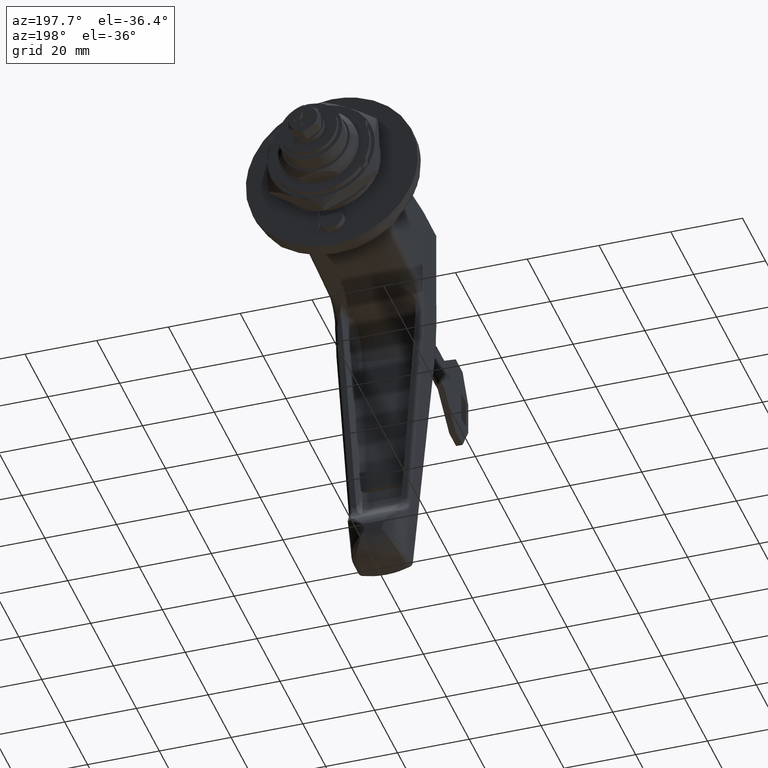
[diagram: clean part render]
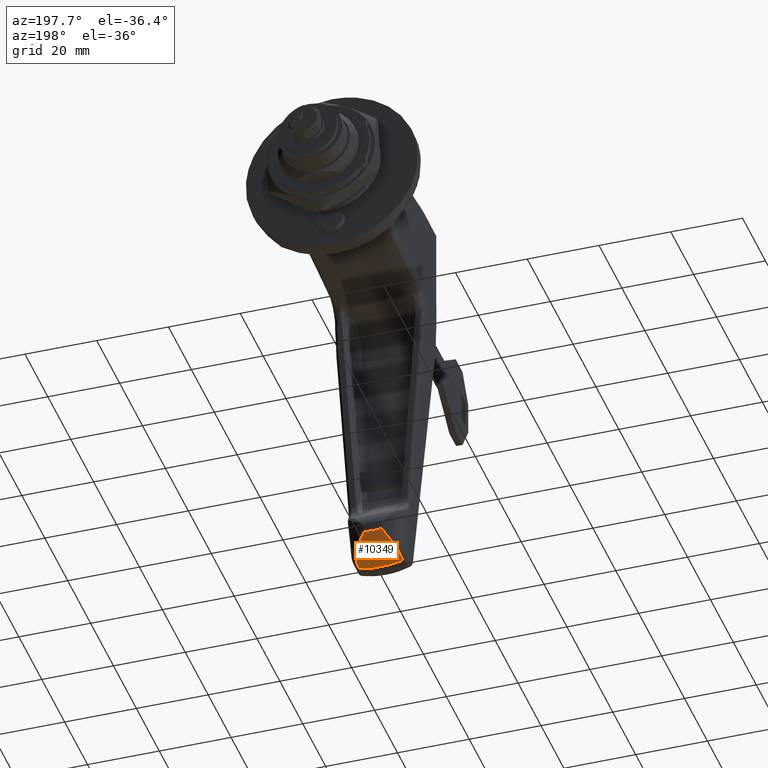
[diagram: same view with one face highlighted and labeled with its STEP entity id]
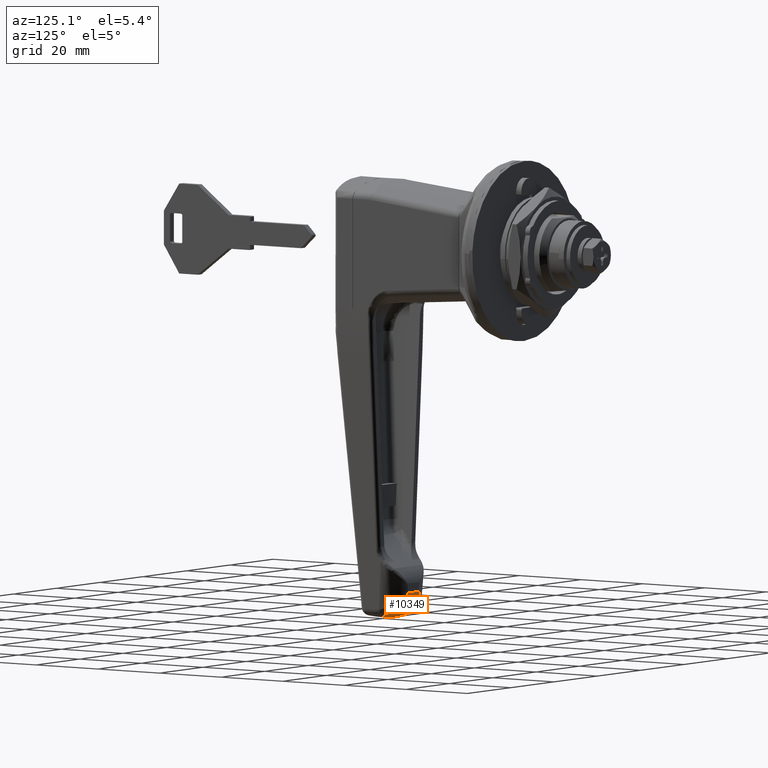
[diagram: same view with one face highlighted and labeled with its STEP entity id]
A machine part, auxiliary view. The second image highlights one B-rep face of the part: STEP entity #10349.
A second angle (auxiliary view) of the same face is appended — the face is thin or edge-on in the first view.
In plain terms, the highlighted face is a freeform B-spline surface patch.
Its self-contained STEP definition (entity closure, byte-faithful):
#9191=CARTESIAN_POINT('',(-36.0,2.402235869534550,-92.838981552407105));
#9192=VERTEX_POINT('',#9191);
#9238=CARTESIAN_POINT('',(-41.400232703835499,6.082757744321650,-99.057672582753710));
#9239=VERTEX_POINT('',#9238);
#9240=CARTESIAN_POINT('',(-41.400232703835499,6.082757744321709,-99.057672582753710));
#9241=CARTESIAN_POINT('',(-41.001840446385330,6.082573216091054,-98.961253228659558));
#9242=CARTESIAN_POINT('',(-40.617054938597967,6.049263009135467,-98.838786568899479));
#9243=CARTESIAN_POINT('',(-40.059392444842352,5.957444188707603,-98.615767583854478));
#9244=CARTESIAN_POINT('',(-39.876780081808967,5.919790798959626,-98.534837470377184));
#9245=CARTESIAN_POINT('',(-39.607853744631697,5.853199830263695,-98.403178076149075));
#9246=CARTESIAN_POINT('',(-39.519276802824670,5.829363818523548,-98.357682117735607));
#9247=CARTESIAN_POINT('',(-39.345417459927290,5.778895320147322,-98.264113561820210));
#9248=CARTESIAN_POINT('',(-39.259950918993113,5.752218095699744,-98.215951903188000));
#9249=CARTESIAN_POINT('',(-38.839761310217860,5.611988682436330,-97.968300547272463));
#9250=CARTESIAN_POINT('',(-38.526295991744348,5.478090089160500,-97.748434729688768));
#9251=CARTESIAN_POINT('',(-38.161899066209912,5.287426651894446,-97.445557542164181));
#9252=CARTESIAN_POINT('',(-38.090455661273623,5.248137371068532,-97.383601763831209));
#9253=CARTESIAN_POINT('',(-37.951479681393302,5.167966047925252,-97.257895239827704));
#9254=CARTESIAN_POINT('',(-37.883793150913512,5.127005302332803,-97.194019126516707));
#9255=CARTESIAN_POINT('',(-37.686000749001693,5.001663015703382,-96.999336321175846));
#9256=CARTESIAN_POINT('',(-37.561151916846207,4.914827321224314,-96.865480301726393));
#9257=CARTESIAN_POINT('',(-37.325015949554462,4.735322153027169,-96.589579937346244));
#9258=CARTESIAN_POINT('',(-37.213729991165998,4.642651046732799,-96.447535611106957));
#9259=CARTESIAN_POINT('',(-37.004571338573882,4.452015437035342,-96.155039759021363));
#9260=CARTESIAN_POINT('',(-36.906451262402172,4.353723145456030,-96.004081376382686));
#9261=CARTESIAN_POINT('',(-36.636164424107463,4.055962242403544,-95.544877679505547));
#9262=CARTESIAN_POINT('',(-36.486542995110320,3.852627458051540,-95.228786092734296));
#9263=CARTESIAN_POINT('',(-36.305558688344242,3.543188197683534,-94.738958939097387));
#9264=CARTESIAN_POINT('',(-36.252513483854983,3.439291074661246,-94.573057649113366));
#9265=CARTESIAN_POINT('',(-36.183927682555939,3.282594350837310,-94.320068087075569));
#9266=CARTESIAN_POINT('',(-36.162877145727187,3.230159698575435,-94.234949402743212));
#9267=CARTESIAN_POINT('',(-36.124585704280122,3.125340382624812,-94.063766381045227));
#9268=CARTESIAN_POINT('',(-36.107364674282231,3.073023751425033,-93.977814342735044));
#9269=CARTESIAN_POINT('',(-36.061428790832373,2.916415376763655,-93.718846528630280));
#9270=CARTESIAN_POINT('',(-36.038430692405143,2.812465393257704,-93.544720562859979));
#9271=CARTESIAN_POINT('',(-36.015374274745511,2.657464627974994,-93.281165405076536));
#9272=CARTESIAN_POINT('',(-36.009609204498837,2.606022241971149,-93.193038736471735));
#9273=CARTESIAN_POINT('',(-36.003842865608910,2.529253193174585,-93.060472190415638));
#9274=CARTESIAN_POINT('',(-36.002400873091347,2.503725544659359,-93.016214133574451));
#9275=CARTESIAN_POINT('',(-36.000959443300069,2.465548137048313,-92.949751837785541));
#9276=CARTESIAN_POINT('',(-36.000599180481501,2.452840741064967,-92.927584163512265));
#9277=CARTESIAN_POINT('',(-36.000119174764698,2.427464250269204,-92.883222979429519));
#9278=CARTESIAN_POINT('',(-36.0,2.414757078327302,-92.860952027531340));
#9279=CARTESIAN_POINT('',(-36.0,2.402235869534550,-92.838981552407105));
#9280=B_SPLINE_CURVE_WITH_KNOTS('',3,(#9240,#9241,#9242,#9243,#9244,#9245,#9246,#9247,#9248,#9249,#9250,#9251,#9252,#9253,#9254,#9255,#9256,#9257,#9258,#9259,#9260,#9261,#9262,#9263,#9264,#9265,#9266,#9267,#9268,#9269,#9270,#9271,#9272,#9273,#9274,#9275,#9276,#9277,#9278,#9279),.UNSPECIFIED.,.F.,.U.,(4,2,2,2,2,2,2,2,2,2,2,2,2,2,2,2,2,2,2,4),(0.0,0.125000000000009,0.187500000000015,0.218750000000016,0.250000000000017,0.375000000000016,0.406250000000015,0.437500000000014,0.500000000000013,0.562500000000011,0.625000000000009,0.750000000000007,0.812500000000004,0.843750000000004,0.875000000000005,0.937500000000006,0.968750000000007,0.984375000000005,0.992187500000003,1.0),.UNSPECIFIED.);
#9281=EDGE_CURVE('',#9239,#9192,#9280,.T.);
#9347=CARTESIAN_POINT('',(-43.0,6.083051041974920,-99.248638931303503));
#9348=VERTEX_POINT('',#9347);
#9373=CARTESIAN_POINT('',(-43.0,6.083051041974920,-99.248638931303503));
#9374=CARTESIAN_POINT('',(-42.729572790534093,6.083051041974919,-99.248638931303489));
#9375=CARTESIAN_POINT('',(-42.192561230690167,6.083016543304255,-99.216446504622894));
#9376=CARTESIAN_POINT('',(-41.663066520331007,6.082879484285739,-99.121283926465068));
#9377=CARTESIAN_POINT('',(-41.400232703835499,6.082757744321650,-99.057672582753710));
#9378=B_SPLINE_CURVE_WITH_KNOTS('',3,(#9373,#9374,#9375,#9376,#9377),.UNSPECIFIED.,.F.,.U.,(4,1,4),(0.0,0.500000000000000,1.0),.UNSPECIFIED.);
#9379=EDGE_CURVE('',#9348,#9239,#9378,.T.);
#9876=CARTESIAN_POINT('',(-43.0,-6.083051041974960,-99.248638931303503));
#9877=VERTEX_POINT('',#9876);
#9955=CARTESIAN_POINT('',(-41.400232703835449,-6.082757744321630,-99.057672582753710));
#9956=VERTEX_POINT('',#9955);
#9981=CARTESIAN_POINT('',(-41.400232703835449,-6.082757744321690,-99.057672582753710));
#9982=CARTESIAN_POINT('',(-41.663066520330979,-6.082879484285779,-99.121283926465054));
#9983=CARTESIAN_POINT('',(-42.192561292402992,-6.083016664601392,-99.216445987454449));
#9984=CARTESIAN_POINT('',(-42.729572790534107,-6.083051041974960,-99.248638931303546));
#9985=CARTESIAN_POINT('',(-43.0,-6.083051041974960,-99.248638931303503));
#9986=B_SPLINE_CURVE_WITH_KNOTS('',3,(#9981,#9982,#9983,#9984,#9985),.UNSPECIFIED.,.F.,.U.,(4,1,4),(0.0,0.500000000000000,1.0),.UNSPECIFIED.);
#9987=EDGE_CURVE('',#9956,#9877,#9986,.T.);
#10048=CARTESIAN_POINT('',(-36.0,-2.402235869534470,-92.838981552407105));
#10049=VERTEX_POINT('',#10048);
#10050=CARTESIAN_POINT('',(-36.0,-2.402235869534475,-92.838981552407105));
#10051=CARTESIAN_POINT('',(-36.000000000000007,-2.414757078327713,-92.860952027531042));
#10052=CARTESIAN_POINT('',(-36.000119174764720,-2.427464250268379,-92.883222979429974));
#10053=CARTESIAN_POINT('',(-36.000599180481522,-2.452840741064514,-92.927584163512478));
#10054=CARTESIAN_POINT('',(-36.000959443300069,-2.465548137048362,-92.949751837785456));
#10055=CARTESIAN_POINT('',(-36.002400873091339,-2.503725544659351,-93.016214133574408));
#10056=CARTESIAN_POINT('',(-36.003842865608902,-2.529253193174616,-93.060472190415538));
#10057=CARTESIAN_POINT('',(-36.009609204498830,-2.606022241971132,-93.193038736471692));
#10058=CARTESIAN_POINT('',(-36.015374274745533,-2.657464627974865,-93.281165405076550));
#10059=CARTESIAN_POINT('',(-36.038430692405157,-2.812465393257595,-93.544720562860007));
#10060=CARTESIAN_POINT('',(-36.061428790832373,-2.916415376763586,-93.718846528630280));
#10061=CARTESIAN_POINT('',(-36.107364674282231,-3.073023751424958,-93.977814342735016));
#10062=CARTESIAN_POINT('',(-36.124585704280108,-3.125340382624740,-94.063766381045184));
#10063=CARTESIAN_POINT('',(-36.162877145727172,-3.230159698575358,-94.234949402743212));
#10064=CARTESIAN_POINT('',(-36.183927682555947,-3.282594350837234,-94.320068087075555));
#10065=CARTESIAN_POINT('',(-36.252513483854983,-3.439291074661167,-94.573057649113352));
#10066=CARTESIAN_POINT('',(-36.305558688344249,-3.543188197683466,-94.738958939097373));
#10067=CARTESIAN_POINT('',(-36.486542995110327,-3.852627458051467,-95.228786092734310));
#10068=CARTESIAN_POINT('',(-36.636164424107442,-4.055962242403438,-95.544877679505518));
#10069=CARTESIAN_POINT('',(-36.906451262402157,-4.353723145455927,-96.004081376382686));
#10070=CARTESIAN_POINT('',(-37.004571338573847,-4.452015437035253,-96.155039759021363));
#10071=CARTESIAN_POINT('',(-37.213729991165991,-4.642651046732711,-96.447535611106971));
#10072=CARTESIAN_POINT('',(-37.325015949554441,-4.735322153027076,-96.589579937346230));
#10073=CARTESIAN_POINT('',(-37.561151916846192,-4.914827321224225,-96.865480301726393));
#10074=CARTESIAN_POINT('',(-37.686000749001700,-5.001663015703285,-96.999336321175846));
#10075=CARTESIAN_POINT('',(-37.883793150913512,-5.127005302332708,-97.194019126516707));
#10076=CARTESIAN_POINT('',(-37.951479681393288,-5.167966047925167,-97.257895239827690));
#10077=CARTESIAN_POINT('',(-38.090455661273602,-5.248137371068446,-97.383601763831209));
#10078=CARTESIAN_POINT('',(-38.161899066209877,-5.287426651894355,-97.445557542164181));
#10079=CARTESIAN_POINT('',(-38.526295991744320,-5.478090089160416,-97.748434729688768));
#10080=CARTESIAN_POINT('',(-38.839761310217831,-5.611988682436260,-97.968300547272463));
#10081=CARTESIAN_POINT('',(-39.259950918993063,-5.752218095699679,-98.215951903188000));
#10082=CARTESIAN_POINT('',(-39.345417459927269,-5.778895320147254,-98.264113561820238));
#10083=CARTESIAN_POINT('',(-39.519276802824642,-5.829363818523484,-98.357682117735621));
#10084=CARTESIAN_POINT('',(-39.607853744631690,-5.853199830263633,-98.403178076149075));
#10085=CARTESIAN_POINT('',(-39.876780081808953,-5.919790798959568,-98.534837470377198));
#10086=CARTESIAN_POINT('',(-40.059392444842317,-5.957444188707547,-98.615767583854478));
#10087=CARTESIAN_POINT('',(-40.617054938597938,-6.049263009135421,-98.838786568899451));
#10088=CARTESIAN_POINT('',(-41.001840446385280,-6.082573216090972,-98.961253228659572));
#10089=CARTESIAN_POINT('',(-41.400232703835449,-6.082757744321630,-99.057672582753710));
#10090=B_SPLINE_CURVE_WITH_KNOTS('',3,(#10050,#10051,#10052,#10053,#10054,#10055,#10056,#10057,#10058,#10059,#10060,#10061,#10062,#10063,#10064,#10065,#10066,#10067,#10068,#10069,#10070,#10071,#10072,#10073,#10074,#10075,#10076,#10077,#10078,#10079,#10080,#10081,#10082,#10083,#10084,#10085,#10086,#10087,#10088,#10089),.UNSPECIFIED.,.F.,.U.,(4,2,2,2,2,2,2,2,2,2,2,2,2,2,2,2,2,2,2,4),(0.0,0.007812500000000,0.015625000000000,0.031250000000004,0.062500000000008,0.125000000000012,0.156250000000013,0.187500000000013,0.250000000000010,0.375000000000006,0.437500000000005,0.500000000000004,0.562500000000002,0.593750000000002,0.625000000000001,0.750000000000000,0.781249999999999,0.812499999999998,0.874999999999999,1.0),.UNSPECIFIED.);
#10091=EDGE_CURVE('',#10049,#9956,#10090,.T.);
#10300=CARTESIAN_POINT('',(-36.017036059004830,4.718689285012901,-91.864210096252904));
#10301=CARTESIAN_POINT('',(-36.017036059004838,0.000000586151468,-93.184522501965674));
#10302=CARTESIAN_POINT('',(-36.017036059004845,-4.718688197826633,-91.864210400452961));
#10303=CARTESIAN_POINT('',(-35.455821791161512,6.882263229029996,-99.596646657941719));
#10304=CARTESIAN_POINT('',(-35.455821791161519,0.000000854908736,-101.522337664876520));
#10305=CARTESIAN_POINT('',(-35.455821791161512,-6.882261643356173,-99.596647101621031));
#10306=CARTESIAN_POINT('',(-43.485454243560817,6.731852005192137,-99.059089229082687));
#10307=CARTESIAN_POINT('',(-43.485454243560817,0.000000836224785,-100.942694437865370));
#10308=CARTESIAN_POINT('',(-43.485454243560795,-6.731850454173069,-99.059089663065421));
#10316=(BOUNDED_SURFACE()B_SPLINE_SURFACE(2,2,((#10300,#10303,#10306),(#10301,#10304,#10307),(#10302,#10305,#10308)),.UNSPECIFIED.,.F.,.F.,.U.)B_SPLINE_SURFACE_WITH_KNOTS((3,3),(3,3),(0.0,13.717386415106899),(0.0,12.756596227782730),.UNSPECIFIED.)GEOMETRIC_REPRESENTATION_ITEM()RATIONAL_B_SPLINE_SURFACE(((0.865353866396665,0.569445749379684,0.870173735189385),(0.833346833775414,0.548383534967536,0.837988429027483),(0.865353858739007,0.569445744340566,0.870173727489076)))REPRESENTATION_ITEM('')SURFACE());
#10317=ORIENTED_EDGE('',*,*,#9379,.T.);
#10318=ORIENTED_EDGE('',*,*,#9281,.T.);
#10319=CARTESIAN_POINT('',(-36.0,-2.402235869534474,-92.838981552407134));
#10320=CARTESIAN_POINT('',(-36.000000000000007,3.729655E-014,-93.162471834401359));
#10321=CARTESIAN_POINT('',(-36.0,2.402235869534549,-92.838981552407120));
#10329=(BOUNDED_CURVE()B_SPLINE_CURVE(2,(#10319,#10320,#10321),.UNSPECIFIED.,.F.,.U.)CURVE()GEOMETRIC_REPRESENTATION_ITEM()QUASI_UNIFORM_CURVE()RATIONAL_B_SPLINE_CURVE((1.0,0.991054530689285,1.0))REPRESENTATION_ITEM(''));
#10330=EDGE_CURVE('',#10049,#9192,#10329,.T.);
#10331=ORIENTED_EDGE('',*,*,#10330,.F.);
#10332=ORIENTED_EDGE('',*,*,#10091,.T.);
#10333=ORIENTED_EDGE('',*,*,#9987,.T.);
#10334=CARTESIAN_POINT('',(-43.0,6.083051041974916,-99.248638931303503));
#10335=CARTESIAN_POINT('',(-42.999999999999993,-1.734723E-014,-100.774642517900800));
#10336=CARTESIAN_POINT('',(-43.0,-6.083051041974954,-99.248638931303489));
#10344=(BOUNDED_CURVE()B_SPLINE_CURVE(2,(#10334,#10335,#10336),.UNSPECIFIED.,.F.,.U.)CURVE()GEOMETRIC_REPRESENTATION_ITEM()QUASI_UNIFORM_CURVE()RATIONAL_B_SPLINE_CURVE((1.0,0.969945557252140,1.0))REPRESENTATION_ITEM(''));
#10345=EDGE_CURVE('',#9348,#9877,#10344,.T.);
#10346=ORIENTED_EDGE('',*,*,#10345,.F.);
#10347=EDGE_LOOP('',(#10317,#10318,#10331,#10332,#10333,#10346));
#10348=FACE_OUTER_BOUND('',#10347,.T.);
#10349=ADVANCED_FACE('',(#10348),#10316,.T.);